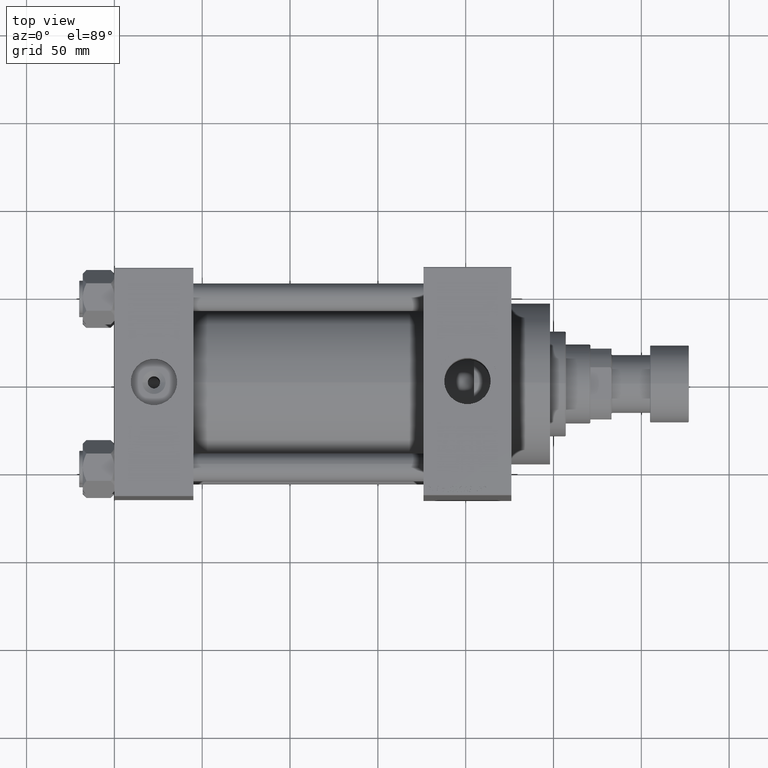
[diagram: clean part render]
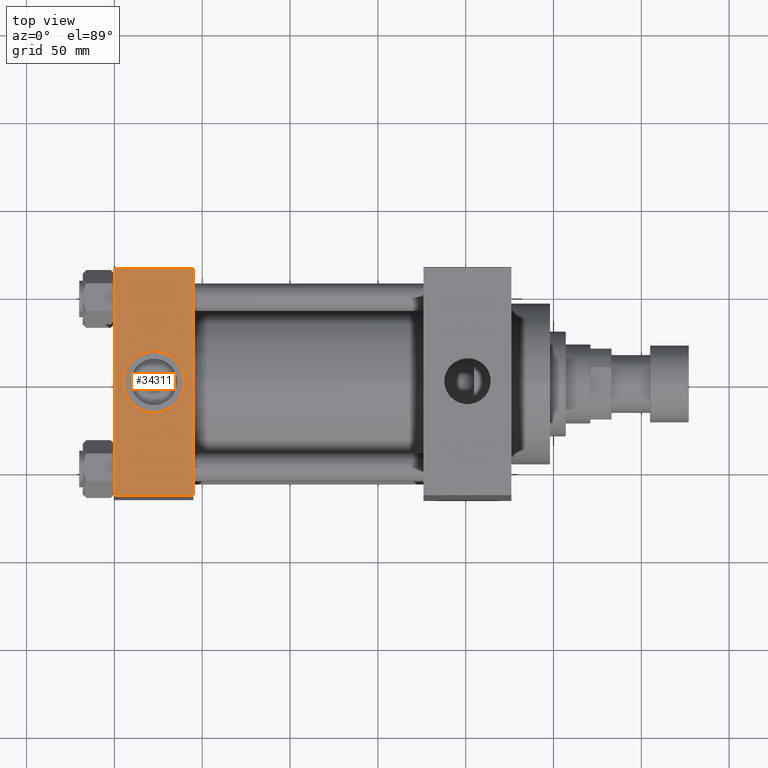
[diagram: same view with one face highlighted and labeled with its STEP entity id]
A machine part, top view. The second image highlights one B-rep face of the part: STEP entity #34311.
In plain terms, the highlighted planar face has unit normal (0, 0, -1).
Its self-contained STEP definition (entity closure, byte-faithful):
#882 = EDGE_CURVE ( 'NONE', #12454, #12860, #47888, .T. ) ;
#1078 = ORIENTED_EDGE ( 'NONE', *, *, #45547, .F. ) ;
#1504 = DIRECTION ( 'NONE',  ( 0.000000000000000000, 0.000000000000000000, 1.000000000000000000 ) ) ;
#1818 = FACE_BOUND ( 'NONE', #12369, .T. ) ;
#2058 = FACE_OUTER_BOUND ( 'NONE', #33218, .T. ) ;
#3747 = DIRECTION ( 'NONE',  ( 0.000000000000000000, -1.000000000000000000, -1.067522139062650425E-16 ) ) ;
#3853 = DIRECTION ( 'NONE',  ( 0.000000000000000000, -1.000000000000000000, -1.067522139062650425E-16 ) ) ;
#5017 = CARTESIAN_POINT ( 'NONE',  ( 45.00000000000000000, -64.49999999999997158, 65.00000000000000000 ) ) ;
#5034 = CARTESIAN_POINT ( 'NONE',  ( 45.00000000000000000, 64.49999999999997158, 65.00000000000001421 ) ) ;
#5641 = EDGE_CURVE ( 'NONE', #21014, #13551, #31816, .T. ) ;
#6704 = VECTOR ( 'NONE', #41730, 1000.000000000000000 ) ;
#7389 = ORIENTED_EDGE ( 'NONE', *, *, #20393, .T. ) ;
#8552 = CARTESIAN_POINT ( 'NONE',  ( 22.50000000000000000, -8.673617379884035472E-15, 65.00000000000000000 ) ) ;
#8638 = CARTESIAN_POINT ( 'NONE',  ( 45.00000000000000000, 65.00000000000000000, 65.00000000000001421 ) ) ;
#8874 = PLANE ( 'NONE',  #24949 ) ;
#9241 = VECTOR ( 'NONE', #3747, 1000.000000000000000 ) ;
#9995 = VECTOR ( 'NONE', #41989, 1000.000000000000000 ) ;
#10823 = AXIS2_PLACEMENT_3D ( 'NONE', #18269, #30174, #22166 ) ;
#10916 = CARTESIAN_POINT ( 'NONE',  ( 0.000000000000000000, 65.00000000000000000, 65.00000000000001421 ) ) ;
#12017 = CARTESIAN_POINT ( 'NONE',  ( 4.999999999999997335, -6.530485481376167224E-15, 65.00000000000000000 ) ) ;
#12369 = EDGE_LOOP ( 'NONE', ( #19760, #1078 ) ) ;
#12454 = VERTEX_POINT ( 'NONE', #47968 ) ;
#12860 = VERTEX_POINT ( 'NONE', #21918 ) ;
#13551 = VERTEX_POINT ( 'NONE', #12017 ) ;
#14819 = CARTESIAN_POINT ( 'NONE',  ( 0.000000000000000000, 64.49999999999997158, 65.00000000000001421 ) ) ;
#18269 = CARTESIAN_POINT ( 'NONE',  ( 22.50000000000000000, -8.673617379884035472E-15, 65.00000000000000000 ) ) ;
#19760 = ORIENTED_EDGE ( 'NONE', *, *, #5641, .F. ) ;
#20393 = EDGE_CURVE ( 'NONE', #12860, #25779, #37853, .T. ) ;
#21014 = VERTEX_POINT ( 'NONE', #44394 ) ;
#21918 = CARTESIAN_POINT ( 'NONE',  ( 0.000000000000000000, -64.49999999999997158, 65.00000000000000000 ) ) ;
#22166 = DIRECTION ( 'NONE',  ( 1.000000000000000000, 0.000000000000000000, 0.000000000000000000 ) ) ;
#23276 = CARTESIAN_POINT ( 'NONE',  ( 45.00000000000000000, -64.49999999999997158, 65.00000000000000000 ) ) ;
#23730 = DIRECTION ( 'NONE',  ( 0.000000000000000000, 1.000000000000000000, 1.067522139062650548E-16 ) ) ;
#24053 = VECTOR ( 'NONE', #3853, 1000.000000000000000 ) ;
#24949 = AXIS2_PLACEMENT_3D ( 'NONE', #8638, #31734, #23730 ) ;
#25779 = VERTEX_POINT ( 'NONE', #23276 ) ;
#25910 = EDGE_CURVE ( 'NONE', #37523, #12454, #34218, .T. ) ;
#26218 = EDGE_CURVE ( 'NONE', #37523, #25779, #29552, .T. ) ;
#29552 = LINE ( 'NONE', #44391, #9241 ) ;
#30174 = DIRECTION ( 'NONE',  ( 0.000000000000000000, 0.000000000000000000, 1.000000000000000000 ) ) ;
#31734 = DIRECTION ( 'NONE',  ( 0.000000000000000000, 1.067522139062650548E-16, -1.000000000000000000 ) ) ;
#31816 = CIRCLE ( 'NONE', #10823, 17.50000000000000000 ) ;
#32565 = AXIS2_PLACEMENT_3D ( 'NONE', #8552, #1504, #38236 ) ;
#33218 = EDGE_LOOP ( 'NONE', ( #35137, #7389, #45133, #34821 ) ) ;
#34218 = LINE ( 'NONE', #14819, #9995 ) ;
#34311 = ADVANCED_FACE ( 'NONE', ( #1818, #2058 ), #8874, .F. ) ;
#34821 = ORIENTED_EDGE ( 'NONE', *, *, #25910, .T. ) ;
#35137 = ORIENTED_EDGE ( 'NONE', *, *, #882, .T. ) ;
#37523 = VERTEX_POINT ( 'NONE', #5034 ) ;
#37853 = LINE ( 'NONE', #5017, #6704 ) ;
#38236 = DIRECTION ( 'NONE',  ( 1.000000000000000000, 0.000000000000000000, 0.000000000000000000 ) ) ;
#40334 = CIRCLE ( 'NONE', #32565, 17.50000000000000000 ) ;
#41730 = DIRECTION ( 'NONE',  ( 1.000000000000000000, 0.000000000000000000, 0.000000000000000000 ) ) ;
#41989 = DIRECTION ( 'NONE',  ( -1.000000000000000000, 0.000000000000000000, 0.000000000000000000 ) ) ;
#44391 = CARTESIAN_POINT ( 'NONE',  ( 45.00000000000000000, 65.00000000000000000, 65.00000000000001421 ) ) ;
#44394 = CARTESIAN_POINT ( 'NONE',  ( 40.00000000000000000, -8.673617379884035472E-15, 65.00000000000000000 ) ) ;
#45133 = ORIENTED_EDGE ( 'NONE', *, *, #26218, .F. ) ;
#45547 = EDGE_CURVE ( 'NONE', #13551, #21014, #40334, .T. ) ;
#47888 = LINE ( 'NONE', #10916, #24053 ) ;
#47968 = CARTESIAN_POINT ( 'NONE',  ( 0.000000000000000000, 64.49999999999997158, 65.00000000000001421 ) ) ;